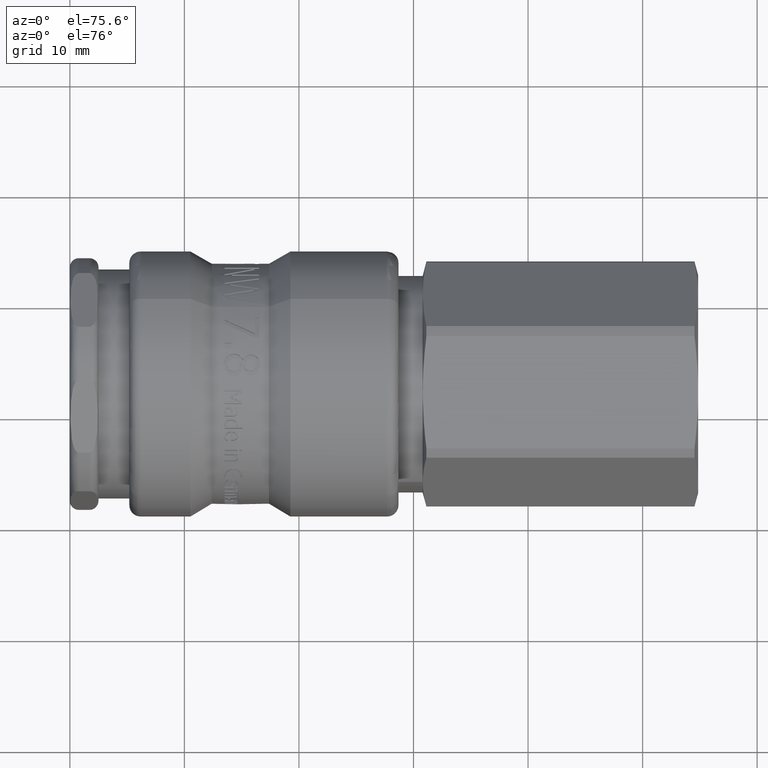
[diagram: clean part render]
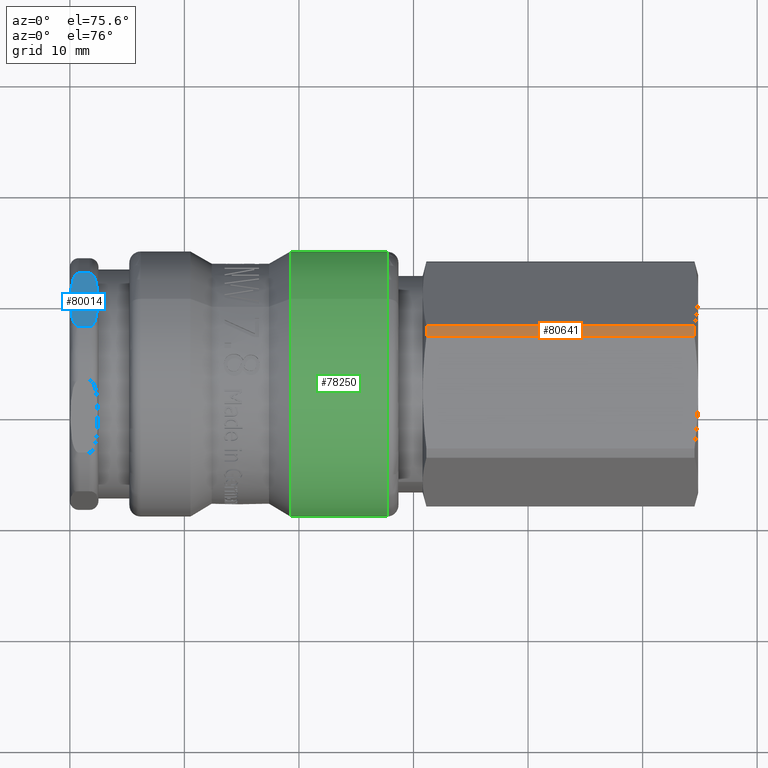
[diagram: same view with three faces highlighted in distinct colors, each labeled with its STEP entity id]
A machine part, auxiliary view with three faces highlighted in distinct colors.
Their STEP definitions:

[orange] entity #80641 — the highlighted cylindrical surface (partial cylindrical patch) has radius 10.7 mm, axis along (-1, 0, 0).
#80421=CARTESIAN_POINT('',(54.528460969082658,2.562395045105146,10.388653985614337));
#80422=VERTEX_POINT('',#80421);
#80436=CARTESIAN_POINT('',(54.528460969082658,1.60868580157981,10.578380310415934));
#80437=VERTEX_POINT('',#80436);
#80438=CARTESIAN_POINT('',(54.528460969082644,0.0,0.0));
#80439=DIRECTION('',(-1.0,0.0,0.0));
#80440=DIRECTION('',(0.0,-0.980780998112866,0.195111849308878));
#80441=AXIS2_PLACEMENT_3D('',#80438,#80439,#80440);
#80442=CIRCLE('',#80441,10.699999999999999);
#80443=EDGE_CURVE('',#80437,#80422,#80442,.T.);
#80610=CARTESIAN_POINT('',(42.828349364905385,0.0,0.0));
#80611=DIRECTION('',(-1.0,0.0,0.0));
#80612=DIRECTION('',(0.0,-0.980780998112866,0.195111849308878));
#80613=AXIS2_PLACEMENT_3D('',#80610,#80611,#80612);
#80614=CYLINDRICAL_SURFACE('',#80613,10.699999999999999);
#80615=CARTESIAN_POINT('',(31.128237760728119,2.562395045105146,10.388653985614337));
#80616=VERTEX_POINT('',#80615);
#80617=CARTESIAN_POINT('',(54.528460969082644,2.562395045105146,10.388653985614337));
#80618=DIRECTION('',(-1.0,0.0,0.0));
#80619=VECTOR('',#80618,23.400223208354525);
#80620=LINE('',#80617,#80619);
#80621=EDGE_CURVE('',#80422,#80616,#80620,.T.);
#80622=ORIENTED_EDGE('',*,*,#80621,.T.);
#80623=CARTESIAN_POINT('',(31.128237760728119,1.60868580157981,10.578380310415934));
#80624=VERTEX_POINT('',#80623);
#80625=CARTESIAN_POINT('',(31.128237760728119,0.0,0.0));
#80626=DIRECTION('',(-1.0,0.0,0.0));
#80627=DIRECTION('',(0.0,-0.980780998112866,0.195111849308878));
#80628=AXIS2_PLACEMENT_3D('',#80625,#80626,#80627);
#80629=CIRCLE('',#80628,10.699999999999999);
#80630=EDGE_CURVE('',#80624,#80616,#80629,.T.);
#80631=ORIENTED_EDGE('',*,*,#80630,.F.);
#80632=CARTESIAN_POINT('',(31.128237760728119,1.60868580157981,10.578380310415934));
#80633=DIRECTION('',(1.0,0.0,0.0));
#80634=VECTOR('',#80633,23.400223208354525);
#80635=LINE('',#80632,#80634);
#80636=EDGE_CURVE('',#80624,#80437,#80635,.T.);
#80637=ORIENTED_EDGE('',*,*,#80636,.T.);
#80638=ORIENTED_EDGE('',*,*,#80443,.T.);
#80639=EDGE_LOOP('',(#80622,#80631,#80637,#80638));
#80640=FACE_OUTER_BOUND('',#80639,.T.);
#80641=ADVANCED_FACE('',(#80640),#80614,.T.);

[blue] entity #80014 — the highlighted planar face has unit normal (0, -0.5, -0.866).
#79635=CARTESIAN_POINT('',(0.799999999999998,2.410545827099862,10.732626370812108));
#79636=VERTEX_POINT('',#79635);
#79644=CARTESIAN_POINT('',(0.799999999999998,8.08945417290014,7.453907108661104));
#79645=VERTEX_POINT('',#79644);
#79646=CARTESIAN_POINT('',(0.799999999999998,2.410545827099862,10.732626370812108));
#79647=CARTESIAN_POINT('',(0.777895532084729,2.410545827099862,10.732626370812108));
#79648=CARTESIAN_POINT('',(0.751665617805481,2.413964861998792,10.730652390092841));
#79649=CARTESIAN_POINT('',(0.706034173954643,2.425566745929467,10.72395403928236));
#79650=CARTESIAN_POINT('',(0.678365053849383,2.436769034130264,10.71748639517409));
#79651=CARTESIAN_POINT('',(0.589002555618164,2.484618137872253,10.68986070224817));
#79652=CARTESIAN_POINT('',(0.52739497798885,2.547850149837331,10.653353683118731));
#79653=CARTESIAN_POINT('',(0.396761492080231,2.722030433764627,10.552790649305781));
#79654=CARTESIAN_POINT('',(0.330435911178499,2.878310076430086,10.46256255554402));
#79655=CARTESIAN_POINT('',(0.174245442307712,3.352111298667032,10.189013292343144));
#79656=CARTESIAN_POINT('',(0.126032054088559,3.735191086238944,9.967842073867397));
#79657=CARTESIAN_POINT('',(0.06664131136934,4.50706213593354,9.522202115546543));
#79658=CARTESIAN_POINT('',(0.058380151290432,4.896019610757449,9.297637412753641));
#79659=CARTESIAN_POINT('',(0.058380151290432,5.250000000000002,9.093266739736606));
#79660=CARTESIAN_POINT('',(0.058380151290432,5.603980389242553,8.888896066719569));
#79661=CARTESIAN_POINT('',(0.06664131136934,5.992937864066463,8.664331363926667));
#79662=CARTESIAN_POINT('',(0.126032054088559,6.764808913761059,8.218691405605814));
#79663=CARTESIAN_POINT('',(0.174245442307713,7.14788870133297,7.997520187130066));
#79664=CARTESIAN_POINT('',(0.330435911178499,7.621689923569917,7.723970923929192));
#79665=CARTESIAN_POINT('',(0.396761492080231,7.777969566235376,7.63374283016743));
#79666=CARTESIAN_POINT('',(0.52739497798885,7.952149850162672,7.53317979635448));
#79667=CARTESIAN_POINT('',(0.589002555618165,8.01538186212775,7.49667277722504));
#79668=CARTESIAN_POINT('',(0.678365053849383,8.063230965869737,7.46904708429912));
#79669=CARTESIAN_POINT('',(0.706034173954643,8.074433254070536,7.462579440190851));
#79670=CARTESIAN_POINT('',(0.751665617805481,8.086035138001211,7.455881089380369));
#79671=CARTESIAN_POINT('',(0.777895532084729,8.08945417290014,7.453907108661104));
#79672=CARTESIAN_POINT('',(0.799999999999998,8.08945417290014,7.453907108661104));
#79673=B_SPLINE_CURVE_WITH_KNOTS('',3,(#79646,#79647,#79648,#79649,#79650,#79651,#79652,#79653,#79654,#79655,#79656,#79657,#79658,#79659,#79660,#79661,#79662,#79663,#79664,#79665,#79666,#79667,#79668,#79669,#79670,#79671,#79672),.UNSPECIFIED.,.F.,.U.,(4,2,2,2,2,2,3,2,2,2,2,2,4),(-0.331459991565858,-0.324828651191277,-0.31719279052988,-0.293309554510366,-0.245244807620443,-0.122622403810221,0.0,0.122622403810221,0.245244807620443,0.293309554510366,0.31719279052988,0.324828651191276,0.331459991565857),.UNSPECIFIED.);
#79674=EDGE_CURVE('',#79636,#79645,#79673,.T.);
#79771=CARTESIAN_POINT('',(1.7,2.410545827099862,10.732626370812108));
#79772=VERTEX_POINT('',#79771);
#79780=CARTESIAN_POINT('',(1.7,2.410545827099862,10.732626370812108));
#79781=DIRECTION('',(-1.0,0.0,0.0));
#79782=VECTOR('',#79781,0.900000000000002);
#79783=LINE('',#79780,#79782);
#79784=EDGE_CURVE('',#79772,#79636,#79783,.T.);
#79795=CARTESIAN_POINT('',(1.7,8.08945417290014,7.453907108661104));
#79796=VERTEX_POINT('',#79795);
#79797=CARTESIAN_POINT('',(0.799999999999998,8.08945417290014,7.453907108661104));
#79798=DIRECTION('',(1.0,0.0,0.0));
#79799=VECTOR('',#79798,0.900000000000002);
#79800=LINE('',#79797,#79799);
#79801=EDGE_CURVE('',#79645,#79796,#79800,.T.);
#79877=CARTESIAN_POINT('',(1.7,8.089454172900139,7.453907108661106));
#79878=CARTESIAN_POINT('',(1.72210446791527,8.089454172900139,7.453907108661106));
#79879=CARTESIAN_POINT('',(1.748334382194517,8.086035138001211,7.45588108938037));
#79880=CARTESIAN_POINT('',(1.793965826045356,8.074433254070536,7.462579440190852));
#79881=CARTESIAN_POINT('',(1.821634946150617,8.063230965869737,7.469047084299123));
#79882=CARTESIAN_POINT('',(1.910997444381833,8.01538186212775,7.496672777225042));
#79883=CARTESIAN_POINT('',(1.972605022011148,7.952149850162675,7.533179796354478));
#79884=CARTESIAN_POINT('',(2.103238507919768,7.777969566235381,7.633742830167428));
#79885=CARTESIAN_POINT('',(2.169564088821497,7.621689923569917,7.723970923929192));
#79886=CARTESIAN_POINT('',(2.325754557692286,7.147888701332972,7.997520187130068));
#79887=CARTESIAN_POINT('',(2.373967945911438,6.764808913761058,8.218691405605817));
#79888=CARTESIAN_POINT('',(2.433358688630657,5.992937864066462,8.664331363926671));
#79889=CARTESIAN_POINT('',(2.441619848709565,5.603980389242555,8.888896066719571));
#79890=CARTESIAN_POINT('',(2.441619848709565,4.896019610757451,9.297637412753643));
#79891=CARTESIAN_POINT('',(2.433358688630658,4.50706213593354,9.522202115546545));
#79892=CARTESIAN_POINT('',(2.373967945911439,3.735191086238945,9.967842073867399));
#79893=CARTESIAN_POINT('',(2.325754557692286,3.352111298667032,10.189013292343144));
#79894=CARTESIAN_POINT('',(2.169564088821497,2.878310076430084,10.462562555544022));
#79895=CARTESIAN_POINT('',(2.103238507919768,2.722030433764622,10.552790649305786));
#79896=CARTESIAN_POINT('',(1.972605022011149,2.547850149837326,10.653353683118734));
#79897=CARTESIAN_POINT('',(1.910997444381833,2.484618137872252,10.68986070224817));
#79898=CARTESIAN_POINT('',(1.821634946150617,2.436769034130264,10.71748639517409));
#79899=CARTESIAN_POINT('',(1.793965826045356,2.425566745929467,10.72395403928236));
#79900=CARTESIAN_POINT('',(1.748334382194517,2.413964861998791,10.730652390092841));
#79901=CARTESIAN_POINT('',(1.72210446791527,2.410545827099863,10.732626370812108));
#79902=CARTESIAN_POINT('',(1.7,2.410545827099863,10.732626370812108));
#79903=B_SPLINE_CURVE_WITH_KNOTS('',3,(#79877,#79878,#79879,#79880,#79881,#79882,#79883,#79884,#79885,#79886,#79887,#79888,#79889,#79890,#79891,#79892,#79893,#79894,#79895,#79896,#79897,#79898,#79899,#79900,#79901,#79902),.UNSPECIFIED.,.F.,.U.,(4,2,2,2,2,2,2,2,2,2,2,2,4),(0.331459991565857,0.338091331940438,0.345727192601835,0.369610428621349,0.417675175511272,0.540297579321493,0.662919983131715,0.785542386941936,0.908164790752158,0.956229537642081,0.980112773661594,0.987748634322991,0.994379974697572),.UNSPECIFIED.);
#79904=EDGE_CURVE('',#79796,#79772,#79903,.T.);
#80003=CARTESIAN_POINT('',(3.793341251028509,5.250000000000003,9.093266739736608));
#80004=DIRECTION('',(5.071291E-016,-0.5,-0.866025403784439));
#80005=DIRECTION('',(0.0,0.866025403784439,-0.5));
#80006=AXIS2_PLACEMENT_3D('',#80003,#80004,#80005);
#80007=PLANE('',#80006);
#80008=ORIENTED_EDGE('',*,*,#79674,.F.);
#80009=ORIENTED_EDGE('',*,*,#79784,.F.);
#80010=ORIENTED_EDGE('',*,*,#79904,.F.);
#80011=ORIENTED_EDGE('',*,*,#79801,.F.);
#80012=EDGE_LOOP('',(#80008,#80009,#80010,#80011));
#80013=FACE_OUTER_BOUND('',#80012,.T.);
#80014=ADVANCED_FACE('',(#80013),#80007,.F.);

[green] entity #78250 — the highlighted cylindrical surface (bore or boss wall) has radius 11.575 mm, axis along (1, 0, -0).
#77982=CARTESIAN_POINT('',(27.690000000000001,5.001674772754136,10.438576266311163));
#77983=VERTEX_POINT('',#77982);
#77984=CARTESIAN_POINT('',(27.690000000000001,3.876819E-015,-1.056117E-014));
#77985=DIRECTION('',(1.0,-1.224870E-016,-2.556323E-016));
#77986=DIRECTION('',(2.834624E-016,0.432110131555432,0.901820843741786));
#77987=AXIS2_PLACEMENT_3D('',#77984,#77985,#77986);
#77988=CIRCLE('',#77987,11.575000000000001);
#77989=EDGE_CURVE('',#77983,#77983,#77988,.T.);
#78224=CARTESIAN_POINT('',(19.251954618136544,5.001674772754134,10.438576266311168));
#78225=VERTEX_POINT('',#78224);
#78226=CARTESIAN_POINT('',(19.251954618136541,2.695426E-015,-7.342840E-015));
#78227=DIRECTION('',(1.0,-1.224870E-016,-2.556323E-016));
#78228=DIRECTION('',(2.834624E-016,0.432110131555432,0.901820843741786));
#78229=AXIS2_PLACEMENT_3D('',#78226,#78227,#78228);
#78230=CIRCLE('',#78229,11.575000000000001);
#78231=EDGE_CURVE('',#78225,#78225,#78230,.T.);
#78239=CARTESIAN_POINT('',(23.470977309068275,3.286123E-015,-8.952007E-015));
#78240=DIRECTION('',(1.0,1.400079E-016,-3.814075E-016));
#78241=DIRECTION('',(2.834624E-016,0.432110131555432,0.901820843741786));
#78242=AXIS2_PLACEMENT_3D('',#78239,#78240,#78241);
#78243=CYLINDRICAL_SURFACE('',#78242,11.575000000000001);
#78244=ORIENTED_EDGE('',*,*,#77989,.F.);
#78245=EDGE_LOOP('',(#78244));
#78246=FACE_OUTER_BOUND('',#78245,.T.);
#78247=ORIENTED_EDGE('',*,*,#78231,.T.);
#78248=EDGE_LOOP('',(#78247));
#78249=FACE_BOUND('',#78248,.T.);
#78250=ADVANCED_FACE('',(#78246,#78249),#78243,.T.);